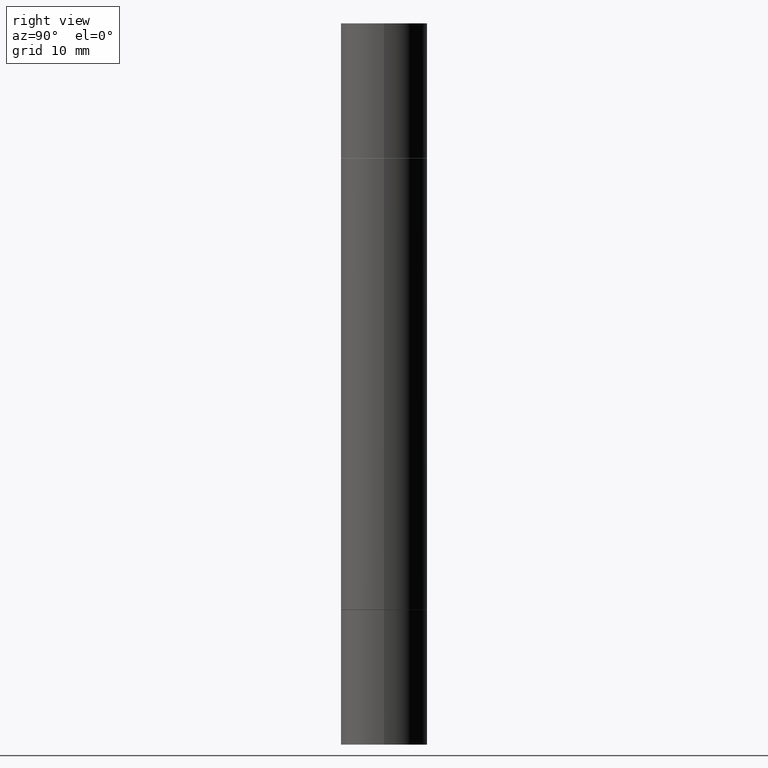
[diagram: clean part render]
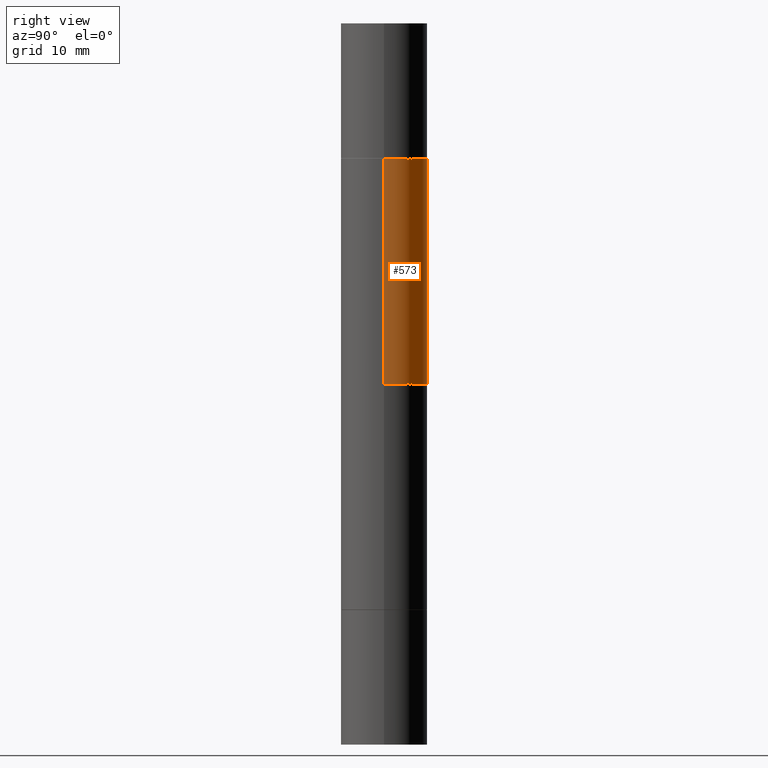
[diagram: same view with one face highlighted and labeled with its STEP entity id]
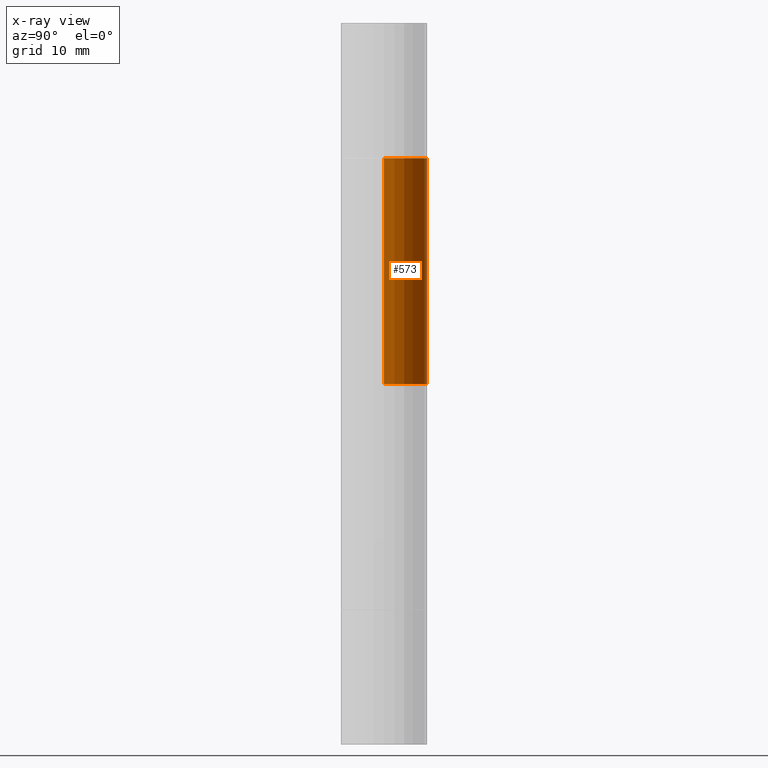
[diagram: x-ray of the same camera — body ghosted, the highlighted face saturated]
A machine part, right view. The second image highlights one B-rep face of the part: STEP entity #573.
The next image is the same camera in x-ray: the body ghosted, the highlighted face saturated — about 0% of this face is hidden behind the body in this view.
In plain terms, the highlighted cylindrical surface (partial cylindrical patch) has radius 4.4996 mm, axis along (-0, -0, -1).
Its self-contained STEP definition (entity closure, byte-faithful):
#1 = CARTESIAN_POINT ( 'NONE',  ( 0.000000000000000000, -1.031172645228302408E-14, -2.952799999999998981 ) ) ;
#23 = ORIENTED_EDGE ( 'NONE', *, *, #607, .F. ) ;
#51 = CARTESIAN_POINT ( 'NONE',  ( 0.1771499999999998354, -4.777790227842073988E-15, -1.476399999999999491 ) ) ;
#58 = DIRECTION ( 'NONE',  ( -2.445468806185136597E-29, -3.492890411551752677E-15, -1.000000000000000000 ) ) ;
#94 = CARTESIAN_POINT ( 'NONE',  ( -0.1771500000000000019, -7.113565100066610661E-16, -0.5521999999999996911 ) ) ;
#96 = CARTESIAN_POINT ( 'NONE',  ( 0.1771500000000000019, -3.163725568664010262E-15, -0.5521999999999996911 ) ) ;
#103 = FACE_OUTER_BOUND ( 'NONE', #286, .T. ) ;
#152 = LINE ( 'NONE', #357, #362 ) ;
#180 = CIRCLE ( 'NONE', #561, 0.1771499999999998354 ) ;
#248 = DIRECTION ( 'NONE',  ( -2.445468806185136877E-29, -3.492890411551753071E-15, -1.000000000000000000 ) ) ;
#261 = ORIENTED_EDGE ( 'NONE', *, *, #443, .T. ) ;
#262 = EDGE_CURVE ( 'NONE', #444, #340, #412, .T. ) ;
#270 = LINE ( 'NONE', #472, #494 ) ;
#277 = AXIS2_PLACEMENT_3D ( 'NONE', #1, #58, #314 ) ;
#280 = CARTESIAN_POINT ( 'NONE',  ( 5.870592416128037625E-29, -1.926693730311889446E-15, -0.5521999999999996911 ) ) ;
#286 = EDGE_LOOP ( 'NONE', ( #23, #657, #261, #545 ) ) ;
#314 = DIRECTION ( 'NONE',  ( 1.000000000000000000, -6.982962677686268288E-15, 0.000000000000000000 ) ) ;
#333 = EDGE_CURVE ( 'NONE', #603, #500, #180, .T. ) ;
#340 = VERTEX_POINT ( 'NONE', #94 ) ;
#357 = CARTESIAN_POINT ( 'NONE',  ( 0.1771499999999998354, -1.154875829063514490E-14, -2.952799999999998981 ) ) ;
#362 = VECTOR ( 'NONE', #248, 39.37007874015748143 ) ;
#371 = CARTESIAN_POINT ( 'NONE',  ( -0.1771499999999998354, -2.325421169184726863E-15, -1.476399999999999491 ) ) ;
#412 = CIRCLE ( 'NONE', #507, 0.1771500000000000019 ) ;
#441 = DIRECTION ( 'NONE',  ( -0.000000000000000000, -3.492185875197449130E-15, -1.000000000000000000 ) ) ;
#443 = EDGE_CURVE ( 'NONE', #444, #500, #152, .T. ) ;
#444 = VERTEX_POINT ( 'NONE', #96 ) ;
#467 = CYLINDRICAL_SURFACE ( 'NONE', #277, 0.1771499999999998354 ) ;
#472 = CARTESIAN_POINT ( 'NONE',  ( -0.1771499999999998354, -9.096389231977799348E-15, -2.952799999999998981 ) ) ;
#494 = VECTOR ( 'NONE', #635, 39.37007874015748143 ) ;
#500 = VERTEX_POINT ( 'NONE', #51 ) ;
#507 = AXIS2_PLACEMENT_3D ( 'NONE', #280, #646, #551 ) ;
#538 = CARTESIAN_POINT ( 'NONE',  ( 3.610490145451734531E-29, -5.154823048668018475E-15, -1.476399999999999491 ) ) ;
#545 = ORIENTED_EDGE ( 'NONE', *, *, #333, .F. ) ;
#551 = DIRECTION ( 'NONE',  ( 1.000000000000000000, -6.982962677686266711E-15, 0.000000000000000000 ) ) ;
#561 = AXIS2_PLACEMENT_3D ( 'NONE', #538, #441, #655 ) ;
#573 = ADVANCED_FACE ( 'NONE', ( #103 ), #467, .T. ) ;
#603 = VERTEX_POINT ( 'NONE', #371 ) ;
#607 = EDGE_CURVE ( 'NONE', #340, #603, #270, .T. ) ;
#635 = DIRECTION ( 'NONE',  ( -2.445468806185136877E-29, -3.492890411551753071E-15, -1.000000000000000000 ) ) ;
#646 = DIRECTION ( 'NONE',  ( 2.445468806185136597E-29, 3.492890411551752677E-15, 1.000000000000000000 ) ) ;
#655 = DIRECTION ( 'NONE',  ( 0.000000000000000000, 1.000000000000000000, -3.084220145260249380E-15 ) ) ;
#657 = ORIENTED_EDGE ( 'NONE', *, *, #262, .F. ) ;